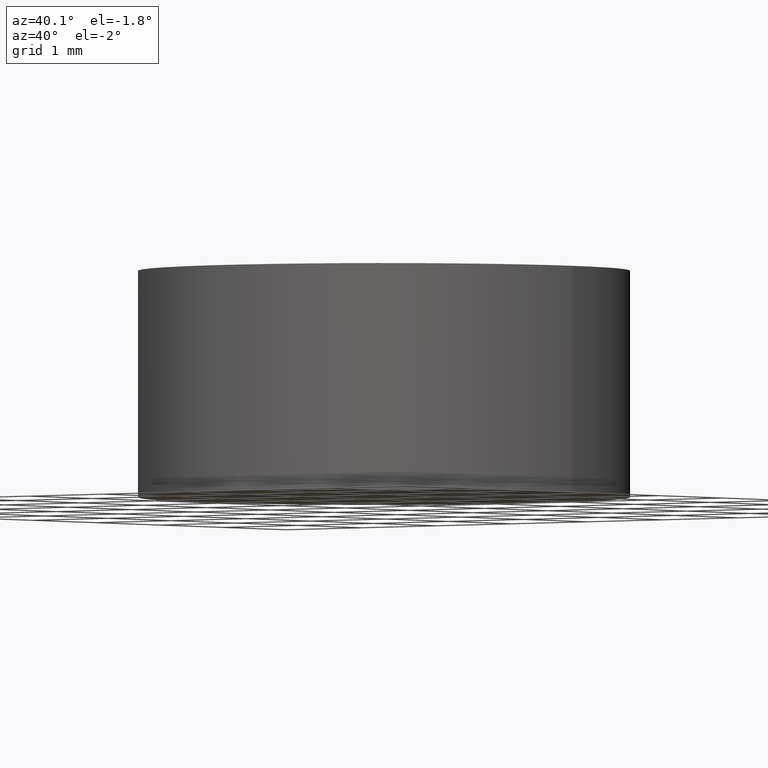
[diagram: clean part render]
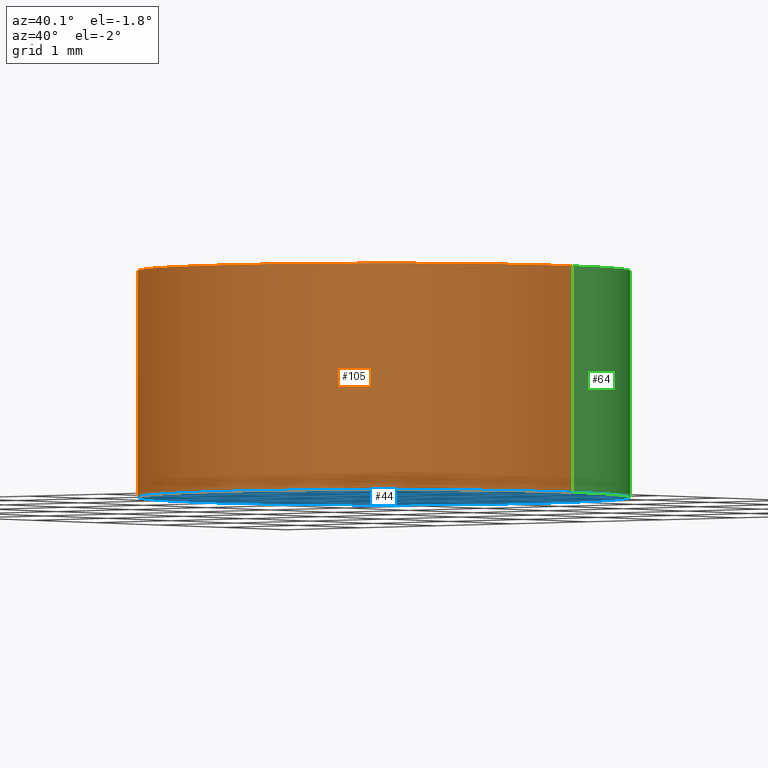
[diagram: same view with three faces highlighted in distinct colors, each labeled with its STEP entity id]
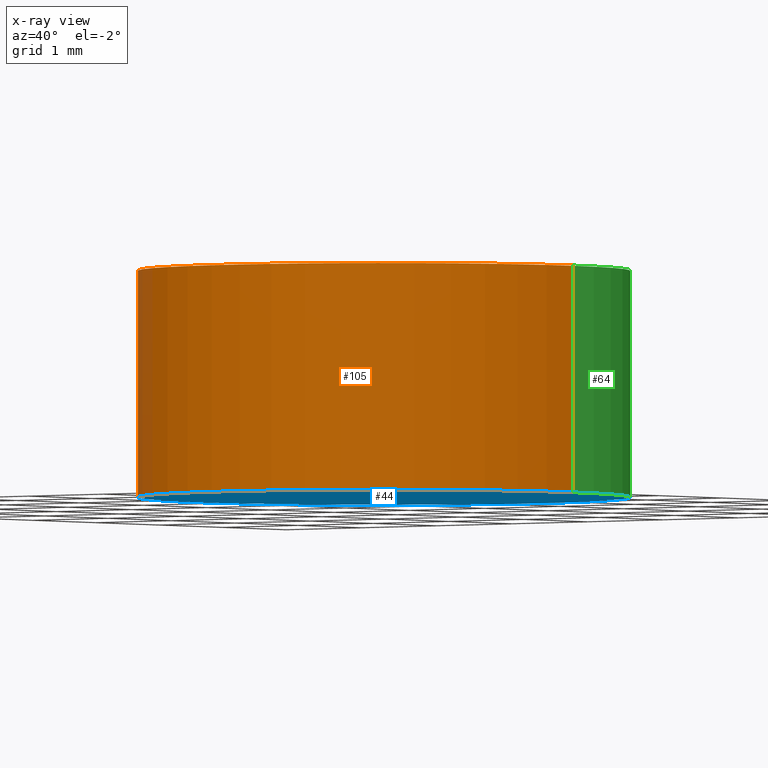
[diagram: x-ray of the same camera — body ghosted, the three highlighted faces saturated]
A machine part, auxiliary view with three faces highlighted in distinct colors.
The next image is the same camera in x-ray (body ghosted, the three faces saturated) — at least one of them is partly hidden behind the body in this view.
Their STEP definitions:

[orange] entity #105 — the highlighted cylindrical surface (partial cylindrical patch) has radius 2.5 mm, axis along (-0, -0, -1).
#1 = EDGE_CURVE ( 'NONE', #4, #50, #14, .T. ) ;
#2 = FACE_OUTER_BOUND ( 'NONE', #39, .T. ) ;
#4 = VERTEX_POINT ( 'NONE', #33 ) ;
#5 = DIRECTION ( 'NONE',  ( -0.0000000000000000000, -0.0000000000000000000, -1.000000000000000000 ) ) ;
#14 = LINE ( 'NONE', #122, #118 ) ;
#16 = EDGE_CURVE ( 'NONE', #131, #50, #95, .T. ) ;
#19 = CARTESIAN_POINT ( 'NONE',  ( 17.74958715517702100, 12.31264836690532000, 2.299999999999999800 ) ) ;
#22 = DIRECTION ( 'NONE',  ( 0.0000000000000000000, 0.0000000000000000000, 1.000000000000000000 ) ) ;
#29 = VECTOR ( 'NONE', #137, 1000.000000000000000 ) ;
#33 = CARTESIAN_POINT ( 'NONE',  ( 22.74958715517701800, 12.31264836690532000, 2.299999999999999800 ) ) ;
#39 = EDGE_LOOP ( 'NONE', ( #69, #109, #119, #40 ) ) ;
#40 = ORIENTED_EDGE ( 'NONE', *, *, #16, .T. ) ;
#42 = EDGE_CURVE ( 'NONE', #60, #131, #51, .T. ) ;
#45 = CARTESIAN_POINT ( 'NONE',  ( 20.24958715517702100, 12.31264836690532000, 2.299999999999999800 ) ) ;
#47 = DIRECTION ( 'NONE',  ( 1.000000000000000000, 0.0000000000000000000, 0.0000000000000000000 ) ) ;
#50 = VERTEX_POINT ( 'NONE', #126 ) ;
#51 = LINE ( 'NONE', #115, #29 ) ;
#56 = CARTESIAN_POINT ( 'NONE',  ( 20.24958715517702100, 12.31264836690532000, 2.299999999999999800 ) ) ;
#60 = VERTEX_POINT ( 'NONE', #19 ) ;
#69 = ORIENTED_EDGE ( 'NONE', *, *, #1, .F. ) ;
#70 = DIRECTION ( 'NONE',  ( -0.0000000000000000000, -0.0000000000000000000, -1.000000000000000000 ) ) ;
#76 = CYLINDRICAL_SURFACE ( 'NONE', #103, 2.499999999999998700 ) ;
#79 = DIRECTION ( 'NONE',  ( 1.000000000000000000, 0.0000000000000000000, 0.0000000000000000000 ) ) ;
#82 = DIRECTION ( 'NONE',  ( -1.000000000000000000, 0.0000000000000000000, 0.0000000000000000000 ) ) ;
#85 = AXIS2_PLACEMENT_3D ( 'NONE', #45, #136, #79 ) ;
#86 = AXIS2_PLACEMENT_3D ( 'NONE', #116, #22, #47 ) ;
#88 = CIRCLE ( 'NONE', #85, 2.499999999999998700 ) ;
#95 = CIRCLE ( 'NONE', #86, 2.499999999999998700 ) ;
#103 = AXIS2_PLACEMENT_3D ( 'NONE', #56, #70, #82 ) ;
#105 = ADVANCED_FACE ( 'NONE', ( #2 ), #76, .T. ) ;
#109 = ORIENTED_EDGE ( 'NONE', *, *, #120, .F. ) ;
#115 = CARTESIAN_POINT ( 'NONE',  ( 17.74958715517702100, 12.31264836690532000, 2.299999999999999800 ) ) ;
#116 = CARTESIAN_POINT ( 'NONE',  ( 20.24958715517702100, 12.31264836690532000, 0.0000000000000000000 ) ) ;
#118 = VECTOR ( 'NONE', #5, 1000.000000000000000 ) ;
#119 = ORIENTED_EDGE ( 'NONE', *, *, #42, .T. ) ;
#120 = EDGE_CURVE ( 'NONE', #60, #4, #88, .T. ) ;
#122 = CARTESIAN_POINT ( 'NONE',  ( 22.74958715517701800, 12.31264836690532000, 2.299999999999999800 ) ) ;
#125 = CARTESIAN_POINT ( 'NONE',  ( 17.74958715517702100, 12.31264836690532000, 0.0000000000000000000 ) ) ;
#126 = CARTESIAN_POINT ( 'NONE',  ( 22.74958715517701800, 12.31264836690532000, 0.0000000000000000000 ) ) ;
#131 = VERTEX_POINT ( 'NONE', #125 ) ;
#136 = DIRECTION ( 'NONE',  ( 0.0000000000000000000, 0.0000000000000000000, 1.000000000000000000 ) ) ;
#137 = DIRECTION ( 'NONE',  ( -0.0000000000000000000, -0.0000000000000000000, -1.000000000000000000 ) ) ;

[blue] entity #44 — the highlighted planar face has unit normal (0, 0, 1).
#12 = CARTESIAN_POINT ( 'NONE',  ( 20.24958715517702100, 12.31264836690532000, 0.0000000000000000000 ) ) ;
#16 = EDGE_CURVE ( 'NONE', #131, #50, #95, .T. ) ;
#17 = EDGE_LOOP ( 'NONE', ( #104, #121 ) ) ;
#22 = DIRECTION ( 'NONE',  ( 0.0000000000000000000, 0.0000000000000000000, 1.000000000000000000 ) ) ;
#30 = AXIS2_PLACEMENT_3D ( 'NONE', #34, #65, #81 ) ;
#34 = CARTESIAN_POINT ( 'NONE',  ( 20.24958715517702100, 12.31264836690532000, 0.0000000000000000000 ) ) ;
#41 = AXIS2_PLACEMENT_3D ( 'NONE', #12, #66, #108 ) ;
#44 = ADVANCED_FACE ( 'NONE', ( #74 ), #67, .F. ) ;
#47 = DIRECTION ( 'NONE',  ( 1.000000000000000000, 0.0000000000000000000, 0.0000000000000000000 ) ) ;
#50 = VERTEX_POINT ( 'NONE', #126 ) ;
#65 = DIRECTION ( 'NONE',  ( 0.0000000000000000000, 0.0000000000000000000, 1.000000000000000000 ) ) ;
#66 = DIRECTION ( 'NONE',  ( 0.0000000000000000000, 0.0000000000000000000, 1.000000000000000000 ) ) ;
#67 = PLANE ( 'NONE',  #30 ) ;
#74 = FACE_OUTER_BOUND ( 'NONE', #17, .T. ) ;
#81 = DIRECTION ( 'NONE',  ( 1.000000000000000000, 0.0000000000000000000, -0.0000000000000000000 ) ) ;
#86 = AXIS2_PLACEMENT_3D ( 'NONE', #116, #22, #47 ) ;
#95 = CIRCLE ( 'NONE', #86, 2.499999999999998700 ) ;
#104 = ORIENTED_EDGE ( 'NONE', *, *, #16, .F. ) ;
#106 = EDGE_CURVE ( 'NONE', #50, #131, #124, .T. ) ;
#108 = DIRECTION ( 'NONE',  ( 1.000000000000000000, 0.0000000000000000000, 0.0000000000000000000 ) ) ;
#116 = CARTESIAN_POINT ( 'NONE',  ( 20.24958715517702100, 12.31264836690532000, 0.0000000000000000000 ) ) ;
#121 = ORIENTED_EDGE ( 'NONE', *, *, #106, .F. ) ;
#124 = CIRCLE ( 'NONE', #41, 2.499999999999998700 ) ;
#125 = CARTESIAN_POINT ( 'NONE',  ( 17.74958715517702100, 12.31264836690532000, 0.0000000000000000000 ) ) ;
#126 = CARTESIAN_POINT ( 'NONE',  ( 22.74958715517701800, 12.31264836690532000, 0.0000000000000000000 ) ) ;
#131 = VERTEX_POINT ( 'NONE', #125 ) ;

[green] entity #64 — the highlighted cylindrical surface (partial cylindrical patch) has radius 2.5 mm, axis along (-0, -0, -1).
#1 = EDGE_CURVE ( 'NONE', #4, #50, #14, .T. ) ;
#4 = VERTEX_POINT ( 'NONE', #33 ) ;
#5 = DIRECTION ( 'NONE',  ( -0.0000000000000000000, -0.0000000000000000000, -1.000000000000000000 ) ) ;
#7 = DIRECTION ( 'NONE',  ( 0.0000000000000000000, 0.0000000000000000000, 1.000000000000000000 ) ) ;
#12 = CARTESIAN_POINT ( 'NONE',  ( 20.24958715517702100, 12.31264836690532000, 0.0000000000000000000 ) ) ;
#14 = LINE ( 'NONE', #122, #118 ) ;
#19 = CARTESIAN_POINT ( 'NONE',  ( 17.74958715517702100, 12.31264836690532000, 2.299999999999999800 ) ) ;
#27 = ORIENTED_EDGE ( 'NONE', *, *, #61, .F. ) ;
#29 = VECTOR ( 'NONE', #137, 1000.000000000000000 ) ;
#33 = CARTESIAN_POINT ( 'NONE',  ( 22.74958715517701800, 12.31264836690532000, 2.299999999999999800 ) ) ;
#37 = DIRECTION ( 'NONE',  ( -0.0000000000000000000, -0.0000000000000000000, -1.000000000000000000 ) ) ;
#41 = AXIS2_PLACEMENT_3D ( 'NONE', #12, #66, #108 ) ;
#42 = EDGE_CURVE ( 'NONE', #60, #131, #51, .T. ) ;
#43 = ORIENTED_EDGE ( 'NONE', *, *, #106, .T. ) ;
#46 = CYLINDRICAL_SURFACE ( 'NONE', #77, 2.499999999999998700 ) ;
#50 = VERTEX_POINT ( 'NONE', #126 ) ;
#51 = LINE ( 'NONE', #115, #29 ) ;
#53 = ORIENTED_EDGE ( 'NONE', *, *, #42, .F. ) ;
#60 = VERTEX_POINT ( 'NONE', #19 ) ;
#61 = EDGE_CURVE ( 'NONE', #4, #60, #140, .T. ) ;
#62 = AXIS2_PLACEMENT_3D ( 'NONE', #97, #7, #68 ) ;
#64 = ADVANCED_FACE ( 'NONE', ( #80 ), #46, .T. ) ;
#66 = DIRECTION ( 'NONE',  ( 0.0000000000000000000, 0.0000000000000000000, 1.000000000000000000 ) ) ;
#68 = DIRECTION ( 'NONE',  ( 1.000000000000000000, 0.0000000000000000000, 0.0000000000000000000 ) ) ;
#77 = AXIS2_PLACEMENT_3D ( 'NONE', #139, #37, #96 ) ;
#80 = FACE_OUTER_BOUND ( 'NONE', #99, .T. ) ;
#96 = DIRECTION ( 'NONE',  ( -1.000000000000000000, 0.0000000000000000000, 0.0000000000000000000 ) ) ;
#97 = CARTESIAN_POINT ( 'NONE',  ( 20.24958715517702100, 12.31264836690532000, 2.299999999999999800 ) ) ;
#99 = EDGE_LOOP ( 'NONE', ( #27, #113, #43, #53 ) ) ;
#106 = EDGE_CURVE ( 'NONE', #50, #131, #124, .T. ) ;
#108 = DIRECTION ( 'NONE',  ( 1.000000000000000000, 0.0000000000000000000, 0.0000000000000000000 ) ) ;
#113 = ORIENTED_EDGE ( 'NONE', *, *, #1, .T. ) ;
#115 = CARTESIAN_POINT ( 'NONE',  ( 17.74958715517702100, 12.31264836690532000, 2.299999999999999800 ) ) ;
#118 = VECTOR ( 'NONE', #5, 1000.000000000000000 ) ;
#122 = CARTESIAN_POINT ( 'NONE',  ( 22.74958715517701800, 12.31264836690532000, 2.299999999999999800 ) ) ;
#124 = CIRCLE ( 'NONE', #41, 2.499999999999998700 ) ;
#125 = CARTESIAN_POINT ( 'NONE',  ( 17.74958715517702100, 12.31264836690532000, 0.0000000000000000000 ) ) ;
#126 = CARTESIAN_POINT ( 'NONE',  ( 22.74958715517701800, 12.31264836690532000, 0.0000000000000000000 ) ) ;
#131 = VERTEX_POINT ( 'NONE', #125 ) ;
#137 = DIRECTION ( 'NONE',  ( -0.0000000000000000000, -0.0000000000000000000, -1.000000000000000000 ) ) ;
#139 = CARTESIAN_POINT ( 'NONE',  ( 20.24958715517702100, 12.31264836690532000, 2.299999999999999800 ) ) ;
#140 = CIRCLE ( 'NONE', #62, 2.499999999999998700 ) ;